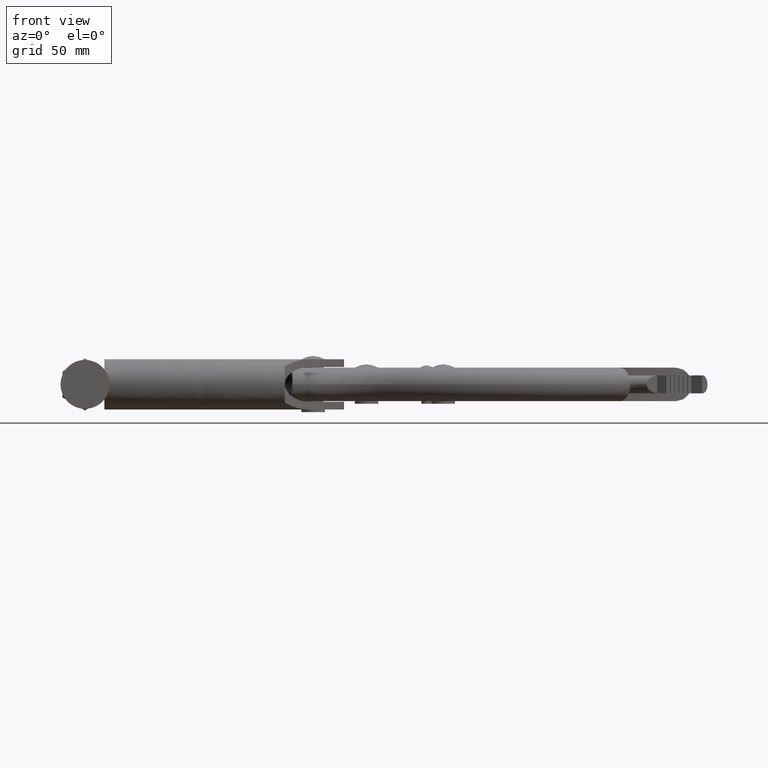
[diagram: clean part render]
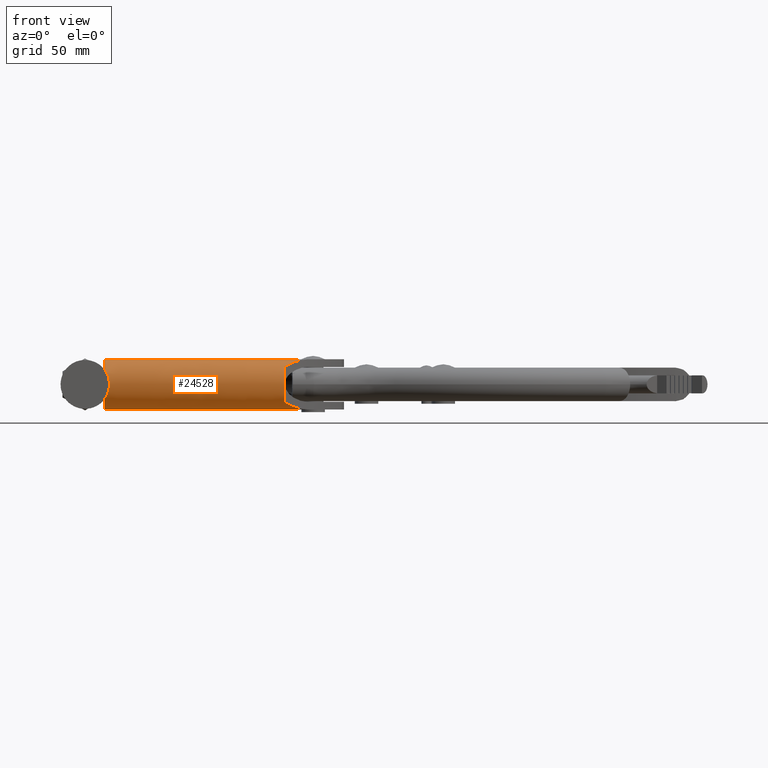
[diagram: same view with one face highlighted and labeled with its STEP entity id]
A machine part, front view. The second image highlights one B-rep face of the part: STEP entity #24528.
In plain terms, the highlighted face is a freeform B-spline surface patch.
Its self-contained STEP definition (entity closure, byte-faithful):
#10 = CARTESIAN_POINT ( 'NONE',  ( -10.99999999999999500, -63.60130230763510900, 4.122655292441647700 ) ) ;
#35 = CARTESIAN_POINT ( 'NONE',  ( -80.99999999999994300, -56.23557614971336700, 8.885146068946415500 ) ) ;
#68 = CARTESIAN_POINT ( 'NONE',  ( -79.14731322599847400, -58.95901770343950700, -9.750000000012692100 ) ) ;
#102 = CARTESIAN_POINT ( 'NONE',  ( -10.99999999999998200, -63.14598815522848000, -4.982927277785707400 ) ) ;
#160 = CARTESIAN_POINT ( 'NONE',  ( -16.96658838870659700, -61.54075029403308900, -9.749999999877239500 ) ) ;
#204 = CARTESIAN_POINT ( 'NONE',  ( -80.99999999999997200, -60.04865129759465200, -5.830951894843589200 ) ) ;
#247 = CARTESIAN_POINT ( 'NONE',  ( -80.59099257660383800, -52.22306262961085100, -9.750000000000001800 ) ) ;
#249 = CARTESIAN_POINT ( 'NONE',  ( -80.99999999999997200, -60.04865129759566100, 5.830951894843583900 ) ) ;
#292 = CARTESIAN_POINT ( 'NONE',  ( -79.96136676580773900, -61.18899207878620000, -4.193929438987821900 ) ) ;
#323 = CARTESIAN_POINT ( 'NONE',  ( -22.91762485197743600, -55.23556778063811400, -9.750000000000000000 ) ) ;
#367 = CARTESIAN_POINT ( 'NONE',  ( -79.25730162877560800, -61.96471388766787000, 2.212609560494053400 ) ) ;
#429 = CARTESIAN_POINT ( 'NONE',  ( -80.99999999999998600, -54.79383632825982200, -9.403832414778163300 ) ) ;
#512 = CARTESIAN_POINT ( 'NONE',  ( -80.99999999999998600, -52.16984112924933500, -9.750000000000001800 ) ) ;
#1051 = CARTESIAN_POINT ( 'NONE',  ( -5.058759421501897600, -56.87790304191037200, -9.428152585810194000 ) ) ;
#1127 = B_SPLINE_CURVE_WITH_KNOTS ( 'NONE', 3,
 ( #512, #8314, #19022, #429, #2469, #12748, #6650, #25621, #12833, #23596, #8749, #23314, #17007, #14980 ),
 .UNSPECIFIED., .F., .F.,
 ( 4, 2, 2, 2, 2, 2, 4 ),
 ( 0.0000000000000000000, 0.002267054839750052600, 0.003400582259625078900, 0.004534109679500105200, 0.005667637099375131100, 0.006801164519250157800, 0.009068219359000224300 ),
 .UNSPECIFIED. ) ;
#1155 = CARTESIAN_POINT ( 'NONE',  ( -3.585006133254516700, -55.54411360403386100, 9.685405435461357000 ) ) ;
#1358 = CARTESIAN_POINT ( 'NONE',  ( -83.66989394677301600, -51.82242503476005900, 9.749999999999998200 ) ) ;
#1443 = CARTESIAN_POINT ( 'NONE',  ( -25.76629742154991800, -55.29429598406699900, 9.750000000000000000 ) ) ;
#1505 = CARTESIAN_POINT ( 'NONE',  ( -80.99999999999998600, -55.17520462385438400, 9.290909267478383500 ) ) ;
#1545 = CARTESIAN_POINT ( 'NONE',  ( -89.81728177907388000, -57.49250638506728700, 9.750000000000001800 ) ) ;
#1632 = CARTESIAN_POINT ( 'NONE',  ( -40.14789293031491000, -61.79764668956094200, 9.750000000015209200 ) ) ;
#1718 = CARTESIAN_POINT ( 'NONE',  ( 3.562713870709056900, -60.18948788805651900, 9.749999999983659300 ) ) ;
#1822 = CARTESIAN_POINT ( 'NONE',  ( -58.05566293169954400, -69.15168877964887900, 4.875000000000008000 ) ) ;
#1885 = CARTESIAN_POINT ( 'NONE',  ( -80.99999999999992900, -54.80815897448801600, 9.400038902919368100 ) ) ;
#1917 = CARTESIAN_POINT ( 'NONE',  ( -2.923797278832176900, -68.87693152224392200, 4.875000000009412000 ) ) ;
#1989 = CARTESIAN_POINT ( 'NONE',  ( -2.159480926927452900, -54.15055672537749800, -9.750000000000000000 ) ) ;
#2007 = CARTESIAN_POINT ( 'NONE',  ( -69.85094179949022900, -68.16026436113588700, -4.874999999953104200 ) ) ;
#2094 = CARTESIAN_POINT ( 'NONE',  ( -7.609068090918660800, -69.19888657529159600, -4.875000000019585200 ) ) ;
#2122 = CARTESIAN_POINT ( 'NONE',  ( -10.99999999999997200, -64.18082851796243900, 2.598031956307568400 ) ) ;
#2184 = CARTESIAN_POINT ( 'NONE',  ( -74.83591370832451200, -59.46482059992134600, -9.750000000000001800 ) ) ;
#2216 = CARTESIAN_POINT ( 'NONE',  ( -10.99999999999998000, -62.41215867362756600, -6.075047580657427600 ) ) ;
#2265 = CARTESIAN_POINT ( 'NONE',  ( -28.56820610776287900, -56.23288284388180400, -9.750000000000000000 ) ) ;
#2269 = CARTESIAN_POINT ( 'NONE',  ( -12.63002846670291700, -61.34517316394185800, -9.749999999949480400 ) ) ;
#2353 = CARTESIAN_POINT ( 'NONE',  ( -78.34130242945134600, -52.50917298653184400, -9.750000000000001800 ) ) ;
#2412 = CARTESIAN_POINT ( 'NONE',  ( -79.47888697262891400, -61.72045102132584300, -2.989778074141461200 ) ) ;
#2449 = CARTESIAN_POINT ( 'NONE',  ( -17.22265508886921400, -55.04574985744148600, -9.750000000000000000 ) ) ;
#2469 = CARTESIAN_POINT ( 'NONE',  ( -81.00000000000001400, -55.15971391558952800, -9.295978508210961200 ) ) ;
#2504 = CARTESIAN_POINT ( 'NONE',  ( -79.47861653371313700, -61.72074900417160100, 2.989013246369465600 ) ) ;
#2647 = EDGE_CURVE ( 'NONE', #5566, #24545, #13348, .T. ) ;
#2987 = CARTESIAN_POINT ( 'NONE',  ( -8.029775159335180500, -59.34582587397908800, -8.527204270465944100 ) ) ;
#3267 = CARTESIAN_POINT ( 'NONE',  ( -5.771571591478299000, -57.50420538101995000, 9.271441694693441700 ) ) ;
#3470 = CARTESIAN_POINT ( 'NONE',  ( -80.17675011163163400, -52.27628567044376200, 9.749999999999998200 ) ) ;
#3556 = CARTESIAN_POINT ( 'NONE',  ( -18.64619962403432400, -55.09923428709608100, 9.750000000000000000 ) ) ;
#3644 = CARTESIAN_POINT ( 'NONE',  ( -84.48807429680702800, -58.27072565701229900, 9.750000000002341200 ) ) ;
#3732 = CARTESIAN_POINT ( 'NONE',  ( -25.65709580777852100, -61.79356275791633400, 9.750000000000000000 ) ) ;
#3834 = CARTESIAN_POINT ( 'NONE',  ( -90.84000721661641400, -65.55288216287091500, 4.874999999999992000 ) ) ;
#3918 = CARTESIAN_POINT ( 'NONE',  ( -40.31705974839320600, -69.92180437041993500, 4.875000000030413000 ) ) ;
#4010 = CARTESIAN_POINT ( 'NONE',  ( 4.005258630353677200, -68.30242688239525300, 4.875000000198396900 ) ) ;
#4066 = CARTESIAN_POINT ( 'NONE',  ( -80.99999999999998600, -55.88804154976977400, 9.033657176844457100 ) ) ;
#4098 = CARTESIAN_POINT ( 'NONE',  ( -58.05566293169954400, -69.15168877964887900, -4.874999999999973400 ) ) ;
#4134 = CARTESIAN_POINT ( 'NONE',  ( -10.99999999999996800, -61.98776301959944800, 6.574099288817439700 ) ) ;
#4192 = CARTESIAN_POINT ( 'NONE',  ( -2.923797278832176900, -68.87693152224392200, -4.874999999975482700 ) ) ;
#4218 = CARTESIAN_POINT ( 'NONE',  ( -10.99999999999998000, -64.42822207076382300, 1.309476093073838900 ) ) ;
#4274 = CARTESIAN_POINT ( 'NONE',  ( -69.07174476613133200, -60.07248183610830200, -9.749999999969583400 ) ) ;
#4306 = CARTESIAN_POINT ( 'NONE',  ( -10.99999999999999300, -61.51108990453455000, -7.031315148407488300 ) ) ;
#4367 = CARTESIAN_POINT ( 'NONE',  ( -8.051612850623280700, -61.08594758032744200, -9.750000000012160900 ) ) ;
#4460 = CARTESIAN_POINT ( 'NONE',  ( -74.11511751349317500, -53.00486288548685100, -9.750000000000001800 ) ) ;
#4512 = CARTESIAN_POINT ( 'NONE',  ( -79.25597341120062800, -61.96617832573020500, -2.207247788991125900 ) ) ;
#4546 = CARTESIAN_POINT ( 'NONE',  ( -12.97181536218671700, -54.85415382995543600, -9.750000000000000000 ) ) ;
#4592 = CARTESIAN_POINT ( 'NONE',  ( -79.75817960019848800, -61.41276889499666700, 3.727799708896696500 ) ) ;
#4719 = CARTESIAN_POINT ( 'NONE',  ( -80.99999999999998600, -52.16984112924933500, 9.749999999999998200 ) ) ;
#4890 = EDGE_CURVE ( 'NONE', #17103, #24025, #1127, .T. ) ;
#5348 = CARTESIAN_POINT ( 'NONE',  ( -7.259731775797028800, -58.73058874130585800, 8.803042071363536900 ) ) ;
#5560 = CARTESIAN_POINT ( 'NONE',  ( -76.94536370270310500, -52.67818558957519300, 9.749999999999998200 ) ) ;
#5566 = VERTEX_POINT ( 'NONE', #17156 ) ;
#5649 = CARTESIAN_POINT ( 'NONE',  ( -14.37627627157653300, -54.92270850080378600, 9.750000000000000000 ) ) ;
#5688 = CARTESIAN_POINT ( 'NONE',  ( -10.26123135012481100, -61.00294527603680500, -7.479763174725235300 ) ) ;
#5747 = CARTESIAN_POINT ( 'NONE',  ( -80.99836532113921800, -58.72415047158664000, 9.749999999999650100 ) ) ;
#5812 = EDGE_CURVE ( 'NONE', #23164, #15089, #10738, .T. ) ;
#5831 = ORIENTED_EDGE ( 'NONE', *, *, #5812, .F. ) ;
#5835 = CARTESIAN_POINT ( 'NONE',  ( -18.41461734224869300, -61.59515373841598800, 9.750000000002534900 ) ) ;
#5925 = CARTESIAN_POINT ( 'NONE',  ( -85.51079973434959000, -66.33110143484400100, 4.874999999990660800 ) ) ;
#6008 = CARTESIAN_POINT ( 'NONE',  ( -25.52059379056048600, -69.91764622536749100, 4.874999999915022600 ) ) ;
#6034 = CARTESIAN_POINT ( 'NONE',  ( -80.99999999999997200, -60.04865129759465200, -5.830951894843589200 ) ) ;
#6084 = ORIENTED_EDGE ( 'NONE', *, *, #13961, .F. ) ;
#6114 = CARTESIAN_POINT ( 'NONE',  ( -90.84000721661641400, -65.55288216287091500, -4.875000000000027500 ) ) ;
#6196 = CARTESIAN_POINT ( 'NONE',  ( -40.31705974839320600, -69.92180437041993500, -4.874999999974663800 ) ) ;
#6276 = CARTESIAN_POINT ( 'NONE',  ( 4.005258630353678100, -68.30242688239525300, -4.874999999311426400 ) ) ;
#6305 = CARTESIAN_POINT ( 'NONE',  ( -10.99999999999997700, -64.51098259453172500, 0.3289903456079698000 ) ) ;
#6362 = CARTESIAN_POINT ( 'NONE',  ( -57.52025990114437100, -61.04342580112623300, -9.749999999999984000 ) ) ;
#6419 = CARTESIAN_POINT ( 'NONE',  ( -81.00000000000001400, -59.58782831101665100, 6.443554548297376200 ) ) ;
#6446 = CARTESIAN_POINT ( 'NONE',  ( -80.99999999999998600, -52.16984112924933500, -9.750000000000001800 ) ) ;
#6452 = CARTESIAN_POINT ( 'NONE',  ( -3.366342038535847800, -60.76399252730795600, -9.749999999986805200 ) ) ;
#6464 = CARTESIAN_POINT ( 'NONE',  ( -10.99999999999999300, -61.51108990453455000, -7.031315148407488300 ) ) ;
#6531 = CARTESIAN_POINT ( 'NONE',  ( -68.44838713941580000, -53.60225581603554400, -9.750000000000001800 ) ) ;
#6533 = CARTESIAN_POINT ( 'NONE',  ( -81.00000000000000000, -59.06492514384591900, 6.990429527890460000 ) ) ;
#6587 = CARTESIAN_POINT ( 'NONE',  ( -79.09949003456810600, -62.13874756243309600, -1.398630612616876600 ) ) ;
#6624 = CARTESIAN_POINT ( 'NONE',  ( -8.405648658387114800, -54.59559638437346500, -9.750000000000000000 ) ) ;
#6650 = CARTESIAN_POINT ( 'NONE',  ( -80.99999999999994300, -56.22940723339442600, -8.887919534565321900 ) ) ;
#6681 = CARTESIAN_POINT ( 'NONE',  ( -80.08637632122943700, -61.05154444996149000, 4.418351042839035800 ) ) ;
#6812 = CARTESIAN_POINT ( 'NONE',  ( -28.56820610776288700, -56.23288284388180400, 9.750000000000000000 ) ) ;
#6890 = B_SPLINE_CURVE_WITH_KNOTS ( 'NONE', 3,
 ( #16894, #2265, #19007, #6446 ),
 .UNSPECIFIED., .F., .F.,
 ( 4, 4 ),
 ( 0.0000000000000000000, 1.000000000000000000 ),
 .UNSPECIFIED. ) ;
#7006 = CARTESIAN_POINT ( 'NONE',  ( -2.159480926927452900, -54.15055672537749800, -9.750000000000000000 ) ) ;
#7240 = ORIENTED_EDGE ( 'NONE', *, *, #22517, .F. ) ;
#7467 = CARTESIAN_POINT ( 'NONE',  ( -8.388293776322312200, -59.61613623391378500, 8.367050375593233700 ) ) ;
#7673 = CARTESIAN_POINT ( 'NONE',  ( -72.69906438211056400, -53.16021138699663600, 9.749999999999998200 ) ) ;
#7769 = CARTESIAN_POINT ( 'NONE',  ( -9.987774072457781900, -54.69138023624728400, 9.750000000000000000 ) ) ;
#7848 = CARTESIAN_POINT ( 'NONE',  ( -77.71486023887767700, -59.13252334860386100, 9.750000000000001800 ) ) ;
#7935 = CARTESIAN_POINT ( 'NONE',  ( -14.07123172130712700, -61.41559296378843400, 9.750000000002534900 ) ) ;
#8034 = CARTESIAN_POINT ( 'NONE',  ( -82.02538433302156300, -66.78398147301136600, 4.875000000001612900 ) ) ;
#8132 = CARTESIAN_POINT ( 'NONE',  ( -18.12513949001096200, -69.71505305273572600, 4.874999999892888300 ) ) ;
#8217 = CARTESIAN_POINT ( 'NONE',  ( -85.51079973434959000, -66.33110143484400100, -4.875000000036221700 ) ) ;
#8300 = CARTESIAN_POINT ( 'NONE',  ( -25.52059379056048600, -69.91764622536749100, -4.875000000253663800 ) ) ;
#8314 = CARTESIAN_POINT ( 'NONE',  ( -80.99999999999998600, -52.93636771448458900, -9.750000000000005300 ) ) ;
#8394 = CARTESIAN_POINT ( 'NONE',  ( -89.81728177907388000, -57.49250638506728700, -9.750000000000017800 ) ) ;
#8421 = CARTESIAN_POINT ( 'NONE',  ( -10.99999999999998000, -64.44677071219172100, -1.297581340900455700 ) ) ;
#8473 = CARTESIAN_POINT ( 'NONE',  ( -40.14789293031491000, -61.79764668956094200, -9.749999999989867700 ) ) ;
#8552 = CARTESIAN_POINT ( 'NONE',  ( 3.562713870709054700, -60.18948788805651900, -9.749999999591525000 ) ) ;
#8636 = CARTESIAN_POINT ( 'NONE',  ( -57.09193747674079600, -54.55681541829189000, -9.750000000000000000 ) ) ;
#8696 = CARTESIAN_POINT ( 'NONE',  ( -79.01260297119790700, -62.23458873068293700, -0.5640472202085367000 ) ) ;
#8731 = CARTESIAN_POINT ( 'NONE',  ( -3.720377846298880800, -54.27364133136396200, -9.750000000000000000 ) ) ;
#8749 = CARTESIAN_POINT ( 'NONE',  ( -80.99999999999997200, -58.17878950035004200, -7.726063741424723300 ) ) ;
#8782 = CARTESIAN_POINT ( 'NONE',  ( -80.71307754068604400, -60.36285601402465100, 5.461900926208897100 ) ) ;
#9361 = CARTESIAN_POINT ( 'NONE',  ( -80.99999999999998600, -52.16984112924933500, 9.749999999999998200 ) ) ;
#9548 = CARTESIAN_POINT ( 'NONE',  ( -10.26201953862262600, -61.00348741294448700, 7.479284727787911500 ) ) ;
#9767 = CARTESIAN_POINT ( 'NONE',  ( -65.61124484929534600, -53.86494962371342900, 9.749999999999998200 ) ) ;
#9853 = CARTESIAN_POINT ( 'NONE',  ( -5.281790912440882800, -54.38726369147204300, 9.750000000000000000 ) ) ;
#9947 = CARTESIAN_POINT ( 'NONE',  ( -73.39550494355869100, -59.62284014121347300, 9.750000000005067900 ) ) ;
#9955 = ORIENTED_EDGE ( 'NONE', *, *, #2647, .F. ) ;
#9964 = ORIENTED_EDGE ( 'NONE', *, *, #24574, .F. ) ;
#10046 = EDGE_LOOP ( 'NONE', ( #27218, #12527, #7240, #5831, #10809, #6084, #9964, #9955 ) ) ;
#10051 = CARTESIAN_POINT ( 'NONE',  ( -9.620617776017107700, -61.18101575253208300, 9.750000000001366000 ) ) ;
#10134 = CARTESIAN_POINT ( 'NONE',  ( -78.67673090910095400, -67.20044554738717600, 4.874999999999999100 ) ) ;
#10209 = CARTESIAN_POINT ( 'NONE',  ( -13.68992603346719900, -69.53169854263731500, 4.874999999934622100 ) ) ;
#10312 = CARTESIAN_POINT ( 'NONE',  ( -82.02538433302156300, -66.78398147301136600, -4.874999999994480000 ) ) ;
#10410 = CARTESIAN_POINT ( 'NONE',  ( -18.12513949001096200, -69.71505305273572600, -4.875000000325139000 ) ) ;
#10440 = CARTESIAN_POINT ( 'NONE',  ( -10.99999999999998200, -62.96626748910513500, 5.273118626238780100 ) ) ;
#10493 = CARTESIAN_POINT ( 'NONE',  ( -84.48807429680702800, -58.27072565701229900, -9.750000000021035600 ) ) ;
#10523 = CARTESIAN_POINT ( 'NONE',  ( -10.99999999999996300, -63.98800846737140100, -3.215004784595843800 ) ) ;
#10578 = CARTESIAN_POINT ( 'NONE',  ( -25.65709580777852100, -61.79356275791633400, -9.750000000149663400 ) ) ;
#10627 = CARTESIAN_POINT ( 'NONE',  ( -80.85754189045718500, -60.20465515319764900, -5.647716663128511200 ) ) ;
#10670 = CARTESIAN_POINT ( 'NONE',  ( -88.99910142903984000, -51.04420576282436900, -9.750000000000001800 ) ) ;
#10716 = CARTESIAN_POINT ( 'NONE',  ( -80.71954778823945300, -60.35597699075884700, -5.456408942768901800 ) ) ;
#10738 = B_SPLINE_CURVE_WITH_KNOTS ( 'NONE', 3,
 ( #6464, #5688, #26088, #2987, #24344, #14996, #22223, #1051, #26354, #10848, #14049, #7006 ),
 .UNSPECIFIED., .F., .F.,
 ( 4, 2, 2, 2, 2, 4 ),
 ( 8.845388854693243300E-018, 0.002964843509135175400, 0.005929687018270342200, 0.007412108772837925300, 0.008894530527405509300, 0.01185937403654067000 ),
 .UNSPECIFIED. ) ;
#10748 = CARTESIAN_POINT ( 'NONE',  ( -40.01255947585632800, -55.29832054487375400, -9.750000000000000000 ) ) ;
#10795 = CARTESIAN_POINT ( 'NONE',  ( -79.00016839191340500, -62.24830632912941300, 0.5658472433978974900 ) ) ;
#10809 = ORIENTED_EDGE ( 'NONE', *, *, #16301, .F. ) ;
#10829 = CARTESIAN_POINT ( 'NONE',  ( 3.208678062956780600, -53.69913669222373200, -9.750000000000000000 ) ) ;
#10848 = CARTESIAN_POINT ( 'NONE',  ( -3.587907011996652500, -55.54705365693866500, -9.685446657505984500 ) ) ;
#11450 = CARTESIAN_POINT ( 'NONE',  ( -81.00000000000000000, -58.19133037049683600, 7.716258717038318300 ) ) ;
#11546 = CARTESIAN_POINT ( 'NONE',  ( -2.867897577131278900, -54.85995509460249100, 9.750000000000174100 ) ) ;
#11748 = CARTESIAN_POINT ( 'NONE',  ( -88.99910142903984000, -51.04420576282436900, 9.749999999999998200 ) ) ;
#11841 = CARTESIAN_POINT ( 'NONE',  ( -51.40188969345767600, -54.88975437161701600, 9.750000000000000000 ) ) ;
#11934 = VERTEX_POINT ( 'NONE', #13362 ) ;
#11942 = CARTESIAN_POINT ( 'NONE',  ( 0.5253620283422957300, -53.93884329754214200, 9.750000000000000000 ) ) ;
#12032 = CARTESIAN_POINT ( 'NONE',  ( -66.18585915588195700, -60.33968606530854800, 9.749999999999998200 ) ) ;
#12106 = CARTESIAN_POINT ( 'NONE',  ( -4.927755104678407600, -60.87761488742602000, 9.749999999999998200 ) ) ;
#12205 = CARTESIAN_POINT ( 'NONE',  ( -74.26605564538658700, -67.70112608401619500, 4.874999999998732600 ) ) ;
#12303 = CARTESIAN_POINT ( 'NONE',  ( -9.161672405461507300, -69.29306014793985500, 4.874999999971403300 ) ) ;
#12384 = CARTESIAN_POINT ( 'NONE',  ( -78.67673090910095400, -67.20044554738717600, -4.875000000000000000 ) ) ;
#12411 = CARTESIAN_POINT ( 'NONE',  ( -10.99999999999732100, -61.51108990452868100, 7.031315148407361300 ) ) ;
#12466 = CARTESIAN_POINT ( 'NONE',  ( -13.68992603346719900, -69.53169854263731500, -4.875000000207538000 ) ) ;
#12502 = CARTESIAN_POINT ( 'NONE',  ( -10.99999999999995600, -63.45607107045360400, 4.420442604289529100 ) ) ;
#12527 = ORIENTED_EDGE ( 'NONE', *, *, #4890, .F. ) ;
#12559 = CARTESIAN_POINT ( 'NONE',  ( -80.99836532113921800, -58.72415047158664000, -9.749999999996442000 ) ) ;
#12592 = CARTESIAN_POINT ( 'NONE',  ( -10.99999999999998400, -63.46252429004932300, -4.407727892759297100 ) ) ;
#12650 = CARTESIAN_POINT ( 'NONE',  ( -18.41461734224869300, -61.59515373841598800, -9.750000000193940900 ) ) ;
#12730 = CARTESIAN_POINT ( 'NONE',  ( -83.66989394677301600, -51.82242503476005900, -9.750000000000001800 ) ) ;
#12732 = CARTESIAN_POINT ( 'NONE',  ( -81.00000000000004300, -57.24277076613633900, 8.360355126477886100 ) ) ;
#12748 = CARTESIAN_POINT ( 'NONE',  ( -81.00000000000000000, -55.88009840869368400, -9.037028174353849900 ) ) ;
#12776 = CARTESIAN_POINT ( 'NONE',  ( -80.32477510234601000, -60.78943037024129100, -4.845361006630767500 ) ) ;
#12814 = CARTESIAN_POINT ( 'NONE',  ( -25.76629742154991800, -55.29429598406699900, -9.750000000000000000 ) ) ;
#12833 = CARTESIAN_POINT ( 'NONE',  ( -80.99999999999998600, -57.23524585135204700, -8.364667974106531300 ) ) ;
#12868 = CARTESIAN_POINT ( 'NONE',  ( -79.19679267631842400, -62.03143827258809000, 1.943672993695907000 ) ) ;
#13348 = B_SPLINE_CURVE_WITH_KNOTS ( 'NONE', 3,
 ( #249, #6419, #6533, #11450, #20387, #12732, #21339, #35, #4066, #1505, #1885, #21303, #27257, #9361 ),
 .UNSPECIFIED., .F., .F.,
 ( 4, 2, 2, 2, 2, 2, 4 ),
 ( 2.587135082600906500E-006, 0.002269555026471622100, 0.003403038972166133800, 0.004536522917860644600, 0.005670006863555156200, 0.006803490809249667900, 0.009070458700638710200 ),
 .UNSPECIFIED. ) ;
#13362 = CARTESIAN_POINT ( 'NONE',  ( -2.159480926925010400, -54.15055672537505400, 9.750000000000000000 ) ) ;
#13961 = EDGE_CURVE ( 'NONE', #11934, #24641, #22205, .T. ) ;
#13964 = CARTESIAN_POINT ( 'NONE',  ( -34.31328121732843800, -55.37394761525509100, 9.750000000000000000 ) ) ;
#14035 = B_SPLINE_CURVE_WITH_KNOTS ( 'NONE', 3,
 ( #12411, #4134, #23062, #10440, #25210, #12502, #10, #14652, #2122, #16752, #4218, #18870, #6305, #20998, #8421, #23151, #10523, #25294, #12592, #102, #14726, #2216, #16829, #4306 ),
 .UNSPECIFIED., .F., .F.,
 ( 4, 2, 2, 2, 2, 2, 2, 2, 2, 2, 2, 4 ),
 ( 3.109360211505206200E-015, 0.001953415565190349000, 0.002930123347783962800, 0.003906831130377576300, 0.005860246695564822300, 0.006836954478158443500, 0.007813662260752066500, 0.009767077825939312500, 0.01172049339112655800, 0.01269720117372018200, 0.01367390895631380400, 0.01562732452150105600 ),
 .UNSPECIFIED. ) ;
#14042 = CARTESIAN_POINT ( 'NONE',  ( 5.890463716274472200, -53.43137631366371900, 9.750000000000000000 ) ) ;
#14049 = CARTESIAN_POINT ( 'NONE',  ( -2.867280302997464900, -54.85933696505361500, -9.750000000000175900 ) ) ;
#14145 = CARTESIAN_POINT ( 'NONE',  ( -51.73260173771061000, -61.38207175625785100, 9.749999999984790800 ) ) ;
#14246 = CARTESIAN_POINT ( 'NONE',  ( 0.8793978361057901400, -60.42919449351568100, 9.750000000004066100 ) ) ;
#14344 = CARTESIAN_POINT ( 'NONE',  ( -66.90412703908988600, -68.43310661731256100, 4.875000000000008000 ) ) ;
#14428 = CARTESIAN_POINT ( 'NONE',  ( -4.485210344975145700, -68.99055388234671700, 4.875000000007497100 ) ) ;
#14522 = CARTESIAN_POINT ( 'NONE',  ( -74.26605564538658700, -67.70112608401619500, -4.875000000023448800 ) ) ;
#14622 = CARTESIAN_POINT ( 'NONE',  ( -9.161672405461507300, -69.29306014793985500, -4.875000000091939800 ) ) ;
#14652 = CARTESIAN_POINT ( 'NONE',  ( -10.99999999999999100, -63.98665485010035800, 3.219530712152078900 ) ) ;
#14701 = CARTESIAN_POINT ( 'NONE',  ( -77.71486023887767700, -59.13252334860386100, -9.750000000000001800 ) ) ;
#14726 = CARTESIAN_POINT ( 'NONE',  ( -10.99999999999998400, -62.97169820371588100, -5.264822701441395300 ) ) ;
#14778 = CARTESIAN_POINT ( 'NONE',  ( -14.07123172130712700, -61.41559296378843400, -9.750000000123130000 ) ) ;
#14870 = CARTESIAN_POINT ( 'NONE',  ( -80.17675011163163400, -52.27628567044376200, -9.750000000000001800 ) ) ;
#14922 = CARTESIAN_POINT ( 'NONE',  ( -79.74790754646454600, -61.42405139163163600, -3.732008899470769000 ) ) ;
#14960 = CARTESIAN_POINT ( 'NONE',  ( -18.64619962403432400, -55.09923428709608100, -9.750000000000000000 ) ) ;
#14980 = CARTESIAN_POINT ( 'NONE',  ( -80.99999999999997200, -60.04865129759465200, -5.830951894843589200 ) ) ;
#14996 = CARTESIAN_POINT ( 'NONE',  ( -6.171206712969671500, -57.83583322395055900, -9.149672610230005900 ) ) ;
#15010 = CARTESIAN_POINT ( 'NONE',  ( -79.39811719183417400, -61.80947563225381500, 2.734747446299095900 ) ) ;
#15089 = VERTEX_POINT ( 'NONE', #1989 ) ;
#15794 = CARTESIAN_POINT ( 'NONE',  ( -5.036843491944146000, -56.86625292697377900, 9.446187406542335900 ) ) ;
#16004 = CARTESIAN_POINT ( 'NONE',  ( -80.59099257660383800, -52.22306262961085100, 9.749999999999998200 ) ) ;
#16099 = CARTESIAN_POINT ( 'NONE',  ( -22.91762485197743600, -55.23556778063811400, 9.750000000000000000 ) ) ;
#16188 = CARTESIAN_POINT ( 'NONE',  ( -87.15444246486475800, -57.89552172940537400, 9.749999999995330000 ) ) ;
#16284 = CARTESIAN_POINT ( 'NONE',  ( -34.35084626381218000, -61.87457552522622700, 9.750000000000000000 ) ) ;
#16301 = EDGE_CURVE ( 'NONE', #24641, #23164, #14035, .T. ) ;
#16341 = B_SPLINE_CURVE_WITH_KNOTS ( 'NONE', 3,
 ( #204, #10627, #10716, #25472, #12776, #292, #14922, #2412, #17031, #4512, #19152, #6587, #21299, #8696, #23435, #10795, #25568, #12868, #367, #15010, #2504, #17127, #4592, #19256, #6681, #21392, #8782, #23539 ),
 .UNSPECIFIED., .F., .F.,
 ( 4, 2, 2, 2, 2, 2, 2, 2, 2, 2, 2, 2, 2, 4 ),
 ( 0.002367606851515499600, 0.003205932153434353600, 0.004044257455353207300, 0.005720908059190887700, 0.006559233361109733500, 0.007397558663028580200, 0.008235883964947426900, 0.009074209266866273600, 0.01075085987070396500, 0.01158918517262281500, 0.01242751047454166400, 0.01326583577646051400, 0.01410416107837936400, 0.01578081168221704900 ),
 .UNSPECIFIED. ) ;
#16358 = CARTESIAN_POINT ( 'NONE',  ( 6.244499524037633100, -59.92172750961777400, 9.750000000000005300 ) ) ;
#16449 = CARTESIAN_POINT ( 'NONE',  ( -52.14599179302170700, -69.49746848705891000, 4.874999999969575400 ) ) ;
#16544 = CARTESIAN_POINT ( 'NONE',  ( 1.321942595810845900, -68.54213348848118400, 4.874999999989101200 ) ) ;
#16645 = CARTESIAN_POINT ( 'NONE',  ( -66.90412703908988600, -68.43310661731256100, -4.874999999999973400 ) ) ;
#16722 = CARTESIAN_POINT ( 'NONE',  ( -4.485210344975145700, -68.99055388234671700, -4.874999999980213200 ) ) ;
#16752 = CARTESIAN_POINT ( 'NONE',  ( -10.99999999999997700, -64.37810270249409000, 1.636692992781410900 ) ) ;
#16803 = CARTESIAN_POINT ( 'NONE',  ( -73.39550494355869100, -59.62284014121347300, -9.750000000015212700 ) ) ;
#16829 = CARTESIAN_POINT ( 'NONE',  ( -10.99999999999997900, -61.98776510283789100, -6.574097290618555100 ) ) ;
#16894 = CARTESIAN_POINT ( 'NONE',  ( -2.159480926927452900, -54.15055672537749800, -9.750000000000000000 ) ) ;
#16899 = CARTESIAN_POINT ( 'NONE',  ( -9.620617776017107700, -61.18101575253208300, -9.750000000054488000 ) ) ;
#16987 = CARTESIAN_POINT ( 'NONE',  ( -76.94536370270310500, -52.67818558957519300, -9.750000000000001800 ) ) ;
#17007 = CARTESIAN_POINT ( 'NONE',  ( -80.99999999999994300, -59.58779919619512100, -6.443593252564393300 ) ) ;
#17031 = CARTESIAN_POINT ( 'NONE',  ( -79.39739295319013500, -61.81027387087085100, -2.732492511939121500 ) ) ;
#17066 = CARTESIAN_POINT ( 'NONE',  ( -14.37627627157653300, -54.92270850080378600, -9.750000000000000000 ) ) ;
#17103 = VERTEX_POINT ( 'NONE', #18470 ) ;
#17127 = CARTESIAN_POINT ( 'NONE',  ( -79.65834824552695200, -61.52272539911270900, 3.484932436273383300 ) ) ;
#17156 = CARTESIAN_POINT ( 'NONE',  ( -80.99999999999997200, -60.04865129759566100, 5.830951894843583900 ) ) ;
#17167 = CARTESIAN_POINT ( 'NONE',  ( -80.99999999999998600, -52.16984112924933500, 9.749999999999998200 ) ) ;
#17256 = CARTESIAN_POINT ( 'NONE',  ( -54.84837913211945400, -55.57264431184001600, 9.749999999999998200 ) ) ;
#17900 = CARTESIAN_POINT ( 'NONE',  ( -6.886139320965411600, -58.42812876233198700, 8.930118689059167300 ) ) ;
#18110 = CARTESIAN_POINT ( 'NONE',  ( -78.34130242945134600, -52.50917298653184400, 9.749999999999998200 ) ) ;
#18213 = CARTESIAN_POINT ( 'NONE',  ( -17.22265508886921400, -55.04574985744148600, 9.750000000000000000 ) ) ;
#18303 = CARTESIAN_POINT ( 'NONE',  ( -81.40917292663785100, -58.67136325185232700, 9.749999999999650100 ) ) ;
#18377 = CARTESIAN_POINT ( 'NONE',  ( -22.75948202143357700, -61.73382834213697400, 9.749999999994926700 ) ) ;
#18470 = CARTESIAN_POINT ( 'NONE',  ( -80.99999999999998600, -52.16984112924933500, -9.750000000000001800 ) ) ;
#18471 = CARTESIAN_POINT ( 'NONE',  ( -88.17716790240375200, -65.95589750716457900, 4.875000000017506900 ) ) ;
#18526 = FACE_OUTER_BOUND ( 'NONE', #10046, .T. ) ;
#18571 = CARTESIAN_POINT ( 'NONE',  ( -34.39780257192445800, -70.00036041241141000, 4.875000000169777100 ) ) ;
#18655 = CARTESIAN_POINT ( 'NONE',  ( 6.687044283741592200, -68.03466650456054800, 4.874999999999899600 ) ) ;
#18747 = CARTESIAN_POINT ( 'NONE',  ( -52.14599179302170700, -69.49746848705891000, -4.875000000025361000 ) ) ;
#18837 = CARTESIAN_POINT ( 'NONE',  ( 1.321942595810845900, -68.54213348848118400, -4.875000000047496200 ) ) ;
#18870 = CARTESIAN_POINT ( 'NONE',  ( -10.99999999999998000, -64.49456427289763400, 0.6554006198028647900 ) ) ;
#18928 = CARTESIAN_POINT ( 'NONE',  ( -66.18585915588195700, -60.33968606530854800, -9.749999999999984000 ) ) ;
#19007 = CARTESIAN_POINT ( 'NONE',  ( -54.84837913211944700, -55.57264431184001600, -9.750000000000001800 ) ) ;
#19010 = CARTESIAN_POINT ( 'NONE',  ( -4.927755104678407600, -60.87761488742602000, -9.749999999987721800 ) ) ;
#19022 = CARTESIAN_POINT ( 'NONE',  ( -80.99999999999998600, -53.68798716970919600, -9.662310046014916100 ) ) ;
#19100 = CARTESIAN_POINT ( 'NONE',  ( -72.69906438211056400, -53.16021138699663600, -9.750000000000001800 ) ) ;
#19152 = CARTESIAN_POINT ( 'NONE',  ( -79.19623329553816400, -62.03205518073959000, -1.940536088219168900 ) ) ;
#19195 = CARTESIAN_POINT ( 'NONE',  ( -9.987774072457781900, -54.69138023624728400, -9.750000000000000000 ) ) ;
#19256 = CARTESIAN_POINT ( 'NONE',  ( -79.97228072987721200, -61.17708289079873700, 4.194510534259357800 ) ) ;
#20021 = CARTESIAN_POINT ( 'NONE',  ( -8.010793492559521700, -59.32460274833550800, 8.521552554881212800 ) ) ;
#20249 = CARTESIAN_POINT ( 'NONE',  ( -74.11511751349317500, -53.00486288548685100, 9.749999999999998200 ) ) ;
#20301 = B_SPLINE_CURVE_WITH_KNOTS ( 'NONE', 3,
 ( #4719, #17256, #6812, #21526 ),
 .UNSPECIFIED., .F., .F.,
 ( 4, 4 ),
 ( 0.0000000000000000000, 1.000000000000000000 ),
 .UNSPECIFIED. ) ;
#20332 = CARTESIAN_POINT ( 'NONE',  ( -12.97181536218671700, -54.85415382995543600, 9.750000000000000000 ) ) ;
#20387 = CARTESIAN_POINT ( 'NONE',  ( -81.00000000000001400, -57.88406349627099000, 7.942963149832560400 ) ) ;
#20424 = CARTESIAN_POINT ( 'NONE',  ( -79.14731322599847400, -58.95901770343950700, 9.750000000001275400 ) ) ;
#20533 = CARTESIAN_POINT ( 'NONE',  ( -16.96658838870659700, -61.54075029403308900, 9.749999999997465100 ) ) ;
#20622 = CARTESIAN_POINT ( 'NONE',  ( -82.43189836418042700, -66.73173902965170600, 4.875000000001433500 ) ) ;
#20708 = CARTESIAN_POINT ( 'NONE',  ( -22.56180348326515900, -69.85665404367090000, 4.875000000214188700 ) ) ;
#20792 = CARTESIAN_POINT ( 'NONE',  ( -88.17716790240368100, -65.95589750716457900, -4.874999999927633900 ) ) ;
#20889 = CARTESIAN_POINT ( 'NONE',  ( -34.39780257192445800, -70.00036041241141000, -4.874999999493204500 ) ) ;
#20969 = CARTESIAN_POINT ( 'NONE',  ( 6.687044283741592200, -68.03466650456054800, -4.875000000000332200 ) ) ;
#20998 = CARTESIAN_POINT ( 'NONE',  ( -10.99999999999997300, -64.51130295566878200, -0.6484076691115878700 ) ) ;
#21055 = CARTESIAN_POINT ( 'NONE',  ( -51.73260173771061000, -61.38207175625785100, -9.750000000010146600 ) ) ;
#21151 = CARTESIAN_POINT ( 'NONE',  ( 0.8793978361057904800, -60.42919449351568100, -9.750000000027423400 ) ) ;
#21250 = CARTESIAN_POINT ( 'NONE',  ( -65.61124484929534600, -53.86494962371342900, -9.750000000000001800 ) ) ;
#21299 = CARTESIAN_POINT ( 'NONE',  ( -79.06248244889317800, -62.17956815330354900, -1.123438525820381400 ) ) ;
#21303 = CARTESIAN_POINT ( 'NONE',  ( -80.99999999999994300, -53.69170566480423200, 9.662313357863029100 ) ) ;
#21337 = CARTESIAN_POINT ( 'NONE',  ( -5.281790912440882800, -54.38726369147204300, -9.750000000000000000 ) ) ;
#21339 = CARTESIAN_POINT ( 'NONE',  ( -80.99999999999995700, -56.91293974980548100, 8.548492787317306000 ) ) ;
#21392 = CARTESIAN_POINT ( 'NONE',  ( -80.44745533512228500, -60.65454866691341400, 5.064590980831413300 ) ) ;
#21526 = CARTESIAN_POINT ( 'NONE',  ( -2.159480926925010400, -54.15055672537505400, 9.750000000000000000 ) ) ;
#21612 = CARTESIAN_POINT ( 'NONE',  ( -10.99999999999732100, -61.51108990452868100, 7.031315148407361300 ) ) ;
#22190 = CARTESIAN_POINT ( 'NONE',  ( -9.514897179696584200, -60.46627171372627900, 7.865256459325554100 ) ) ;
#22205 = B_SPLINE_CURVE_WITH_KNOTS ( 'NONE', 3,
 ( #26324, #11546, #1155, #15794, #3267, #17900, #5348, #20021, #7467, #22190, #9548, #24320 ),
 .UNSPECIFIED., .F., .F.,
 ( 4, 2, 2, 2, 2, 4 ),
 ( 0.0000000000000000000, 0.002965054220659467200, 0.005930108441318934400, 0.007412635551648659800, 0.008895162661978386900, 0.01186021688263784300 ),
 .UNSPECIFIED. ) ;
#22223 = CARTESIAN_POINT ( 'NONE',  ( -5.800115662286629900, -57.52136582517602600, -9.251297298500373900 ) ) ;
#22408 = CARTESIAN_POINT ( 'NONE',  ( -68.44838713941580000, -53.60225581603554400, 9.749999999999998200 ) ) ;
#22496 = CARTESIAN_POINT ( 'NONE',  ( -8.405648658387114800, -54.59559638437346500, 9.750000000000000000 ) ) ;
#22517 = EDGE_CURVE ( 'NONE', #15089, #17103, #6890, .T. ) ;
#22590 = CARTESIAN_POINT ( 'NONE',  ( -74.83591370832451200, -59.46482059992134600, 9.750000000000001800 ) ) ;
#22676 = CARTESIAN_POINT ( 'NONE',  ( -12.63002846670291700, -61.34517316394185800, 9.749999999998744100 ) ) ;
#22768 = CARTESIAN_POINT ( 'NONE',  ( -80.15482672169000000, -67.02132359958807200, 4.874999999994297900 ) ) ;
#22864 = CARTESIAN_POINT ( 'NONE',  ( -16.64650501350648100, -69.65950083965495300, 4.875000000065170100 ) ) ;
#22952 = CARTESIAN_POINT ( 'NONE',  ( -82.43189836418042700, -66.73173902965170600, -4.874999999994480000 ) ) ;
#23031 = CARTESIAN_POINT ( 'NONE',  ( -22.56180348326515900, -69.85665404367090000, -4.874999999349836500 ) ) ;
#23037 =( BOUNDED_SURFACE ( )  B_SPLINE_SURFACE ( 5, 3, ( 
 ( #11748, #26552, #1358, #16004, #3470, #18110, #5560, #20249, #7673, #22408, #9767, #24527, #11841, #26645, #13964, #1443, #16099, #3556, #18213, #5649, #20332, #7769, #22496, #9853, #24619, #11942, #26740, #14042 ),
 ( #1545, #16188, #3644, #18303, #5747, #20424, #7848, #22590, #9947, #24707, #12032, #26830, #14145, #1632, #16284, #3732, #18377, #5835, #20533, #7935, #22676, #10051, #24797, #12106, #26917, #14246, #1718, #16358 ),
 ( #3834, #18471, #5925, #20622, #8034, #22768, #10134, #24894, #12205, #27005, #14344, #1822, #16449, #3918, #18571, #6008, #20708, #8132, #22864, #10209, #24980, #12303, #27100, #14428, #1917, #16544, #4010, #18655 ),
 ( #6114, #20792, #8217, #22952, #10312, #25076, #12384, #27198, #14522, #2007, #16645, #4098, #18747, #6196, #20889, #8300, #23031, #10410, #25176, #12466, #27286, #14622, #2094, #16722, #4192, #18837, #6276, #20969 ),
 ( #8394, #23122, #10493, #25270, #12559, #68, #14701, #2184, #16803, #4274, #18928, #6362, #21055, #8473, #23215, #10578, #25340, #12650, #160, #14778, #2269, #16899, #4367, #19010, #6452, #21151, #8552, #23296 ),
 ( #10670, #25419, #12730, #247, #14870, #2353, #16987, #4460, #19100, #6531, #21250, #8636, #23381, #10748, #25515, #12814, #323, #14960, #2449, #17066, #4546, #19195, #6624, #21337, #8731, #23477, #10829, #25602 ) ),
 .UNSPECIFIED., .F., .F., .F. ) 
 B_SPLINE_SURFACE_WITH_KNOTS ( ( 6, 6 ),
 ( 4, 2, 2, 2, 2, 2, 2, 2, 2, 2, 2, 2, 2, 4 ),
 ( 0.0000000000000000000, 1.000000000000000000 ),
 ( -0.1327941471069352400, -0.01764064041691409600, 0.0000000000000000000, 0.06250000000000000000, 0.1250000000000000000, 0.2500000000000000000, 0.5000000000000000000, 0.7500000000000000000, 0.8750000000000000000, 0.9375000000000000000, 1.000000000000000000, 1.066947213241648700, 1.133894426483297300, 1.249047933173318400 ),
 .UNSPECIFIED. ) 
 GEOMETRIC_REPRESENTATION_ITEM ( )  RATIONAL_B_SPLINE_SURFACE ( (
 ( 1.000000000000000000, 1.000000000000000000, 1.000000000000000000, 1.000000000000000000, 1.000000000000000000, 1.000000000000000000, 1.000000000000000000, 1.000000000000000000, 1.000000000000000000, 1.000000000000000000, 1.000000000000000000, 1.000000000000000000, 1.000000000000000000, 1.000000000000000000, 1.000000000000000000, 1.000000000000000000, 1.000000000000000000, 1.000000000000000000, 1.000000000000000000, 1.000000000000000000, 1.000000000000000000, 1.000000000000000000, 1.000000000000000000, 1.000000000000000000, 1.000000000000000000, 1.000000000000000000, 1.000000000000000000, 1.000000000000000000),
 ( 0.5999999999999995300, 0.5999999999999995300, 0.5999999999999993100, 0.5999999999999993100, 0.5999999999999993100, 0.5999999999999993100, 0.6000000000000000900, 0.6000000000000000900, 0.6000000000000000900, 0.6000000000000000900, 0.6000000000000005300, 0.6000000000000005300, 0.5999999999999998700, 0.5999999999999998700, 0.5999999999999968700, 0.5999999999999968700, 0.5999999999999993100, 0.5999999999999993100, 0.5999999999999943200, 0.5999999999999943200, 0.5999999999999942000, 0.5999999999999942000, 0.6000000000000018700, 0.6000000000000018700, 0.5999999999998932900, 0.5999999999998932900, 0.5999999999999937600, 0.5999999999999937600),
 ( 0.3999999999999993000, 0.3999999999999993000, 0.3999999999999988600, 0.3999999999999988600, 0.3999999999999988600, 0.3999999999999988600, 0.4000000000000000200, 0.4000000000000000200, 0.4000000000000000200, 0.4000000000000000200, 0.4000000000000008000, 0.4000000000000008000, 0.3999999999999996900, 0.3999999999999996900, 0.3999999999999951400, 0.3999999999999951400, 0.3999999999999990200, 0.3999999999999990200, 0.3999999999999915800, 0.3999999999999915800, 0.3999999999999913100, 0.3999999999999913100, 0.4000000000000028500, 0.4000000000000028500, 0.3999999999998399800, 0.3999999999998399800, 0.3999999999999905900, 0.3999999999999905900),
 ( 0.3999999999999993000, 0.3999999999999993000, 0.3999999999999988600, 0.3999999999999988600, 0.3999999999999988600, 0.3999999999999988600, 0.4000000000000000200, 0.4000000000000000200, 0.4000000000000000200, 0.4000000000000000200, 0.4000000000000008000, 0.4000000000000008000, 0.3999999999999996900, 0.3999999999999996900, 0.3999999999999951400, 0.3999999999999951400, 0.3999999999999990200, 0.3999999999999990200, 0.3999999999999915800, 0.3999999999999915800, 0.3999999999999913100, 0.3999999999999913100, 0.4000000000000028500, 0.4000000000000028500, 0.3999999999998399800, 0.3999999999998399800, 0.3999999999999905900, 0.3999999999999905900),
 ( 0.5999999999999995300, 0.5999999999999995300, 0.5999999999999993100, 0.5999999999999993100, 0.5999999999999993100, 0.5999999999999993100, 0.6000000000000000900, 0.6000000000000000900, 0.6000000000000000900, 0.6000000000000000900, 0.6000000000000005300, 0.6000000000000005300, 0.5999999999999998700, 0.5999999999999998700, 0.5999999999999968700, 0.5999999999999968700, 0.5999999999999993100, 0.5999999999999993100, 0.5999999999999943200, 0.5999999999999943200, 0.5999999999999942000, 0.5999999999999942000, 0.6000000000000018700, 0.6000000000000018700, 0.5999999999998932900, 0.5999999999998932900, 0.5999999999999937600, 0.5999999999999937600),
 ( 1.000000000000000000, 1.000000000000000000, 1.000000000000000000, 1.000000000000000000, 1.000000000000000000, 1.000000000000000000, 1.000000000000000000, 1.000000000000000000, 1.000000000000000000, 1.000000000000000000, 1.000000000000000000, 1.000000000000000000, 1.000000000000000000, 1.000000000000000000, 1.000000000000000000, 1.000000000000000000, 1.000000000000000000, 1.000000000000000000, 1.000000000000000000, 1.000000000000000000, 1.000000000000000000, 1.000000000000000000, 1.000000000000000000, 1.000000000000000000, 1.000000000000000000, 1.000000000000000000, 1.000000000000000000, 1.000000000000000000) ) ) 
 REPRESENTATION_ITEM ( '' )  SURFACE ( )  );
#23062 = CARTESIAN_POINT ( 'NONE',  ( -10.99999999999998600, -62.41033885992275300, 6.076803469496916000 ) ) ;
#23122 = CARTESIAN_POINT ( 'NONE',  ( -87.15444246486478600, -57.89552172940537400, -9.749999999960318000 ) ) ;
#23151 = CARTESIAN_POINT ( 'NONE',  ( -10.99999999999998200, -64.18319609347628300, -2.590890711173715400 ) ) ;
#23164 = VERTEX_POINT ( 'NONE', #27064 ) ;
#23215 = CARTESIAN_POINT ( 'NONE',  ( -34.35084626381218000, -61.87457552522622700, -9.749999999700989400 ) ) ;
#23296 = CARTESIAN_POINT ( 'NONE',  ( 6.244499524037633100, -59.92172750961777400, -9.750000000000197200 ) ) ;
#23314 = CARTESIAN_POINT ( 'NONE',  ( -80.99999999999997200, -59.06245243255412400, -6.993684869274842300 ) ) ;
#23381 = CARTESIAN_POINT ( 'NONE',  ( -51.40188969345767600, -54.88975437161701600, -9.750000000000000000 ) ) ;
#23435 = CARTESIAN_POINT ( 'NONE',  ( -78.99991643821707000, -62.24858427042396900, -0.2786722812524157200 ) ) ;
#23477 = CARTESIAN_POINT ( 'NONE',  ( 0.5253620283422959500, -53.93884329754214200, -9.750000000000000000 ) ) ;
#23539 = CARTESIAN_POINT ( 'NONE',  ( -80.99999999999997200, -60.04865129759566100, 5.830951894843583900 ) ) ;
#23596 = CARTESIAN_POINT ( 'NONE',  ( -81.00000000000004300, -57.87058663107401200, -7.952300501650090500 ) ) ;
#24025 = VERTEX_POINT ( 'NONE', #6034 ) ;
#24320 = CARTESIAN_POINT ( 'NONE',  ( -10.99999999999732100, -61.51108990452868100, 7.031315148407361300 ) ) ;
#24344 = CARTESIAN_POINT ( 'NONE',  ( -7.285478954434933200, -58.75842228929548100, -8.806524714091363400 ) ) ;
#24527 = CARTESIAN_POINT ( 'NONE',  ( -57.09193747674079600, -54.55681541829189000, 9.750000000000000000 ) ) ;
#24528 = ADVANCED_FACE ( 'NONE', ( #18526 ), #23037, .T. ) ;
#24545 = VERTEX_POINT ( 'NONE', #17167 ) ;
#24574 = EDGE_CURVE ( 'NONE', #24545, #11934, #20301, .T. ) ;
#24619 = CARTESIAN_POINT ( 'NONE',  ( -3.720377846298880800, -54.27364133136396200, 9.750000000000000000 ) ) ;
#24641 = VERTEX_POINT ( 'NONE', #21612 ) ;
#24707 = CARTESIAN_POINT ( 'NONE',  ( -69.07174476613133200, -60.07248183610830200, 9.749999999989860600 ) ) ;
#24797 = CARTESIAN_POINT ( 'NONE',  ( -8.051612850623280700, -61.08594758032744200, 9.749999999999998200 ) ) ;
#24894 = CARTESIAN_POINT ( 'NONE',  ( -75.73690895185858100, -67.53976774296697300, 4.874999999999999100 ) ) ;
#24980 = CARTESIAN_POINT ( 'NONE',  ( -12.20279484735259400, -69.45894733137691900, 4.875000000026529900 ) ) ;
#25076 = CARTESIAN_POINT ( 'NONE',  ( -80.15482672169000000, -67.02132359958807200, -4.875000000019670500 ) ) ;
#25176 = CARTESIAN_POINT ( 'NONE',  ( -16.64650501350648100, -69.65950083965495300, -4.874999999793077500 ) ) ;
#25210 = CARTESIAN_POINT ( 'NONE',  ( -10.99999999999996600, -63.13848704395180500, 4.995525478293108000 ) ) ;
#25270 = CARTESIAN_POINT ( 'NONE',  ( -81.40917292663785100, -58.67136325185232700, -9.749999999996799000 ) ) ;
#25294 = CARTESIAN_POINT ( 'NONE',  ( -10.99999999999996800, -63.60526970759990200, -4.114021707725664900 ) ) ;
#25340 = CARTESIAN_POINT ( 'NONE',  ( -22.75948202143357700, -61.73382834213697400, -9.749999999612182200 ) ) ;
#25419 = CARTESIAN_POINT ( 'NONE',  ( -86.33626211483246500, -51.44722110718089400, -9.750000000000001800 ) ) ;
#25472 = CARTESIAN_POINT ( 'NONE',  ( -80.45343579277587800, -60.64806576870949300, -5.055753121863941300 ) ) ;
#25515 = CARTESIAN_POINT ( 'NONE',  ( -34.31328121732843800, -55.37394761525509100, -9.750000000000000000 ) ) ;
#25568 = CARTESIAN_POINT ( 'NONE',  ( -79.04998843501886100, -62.19333992966761600, 1.121341284844281400 ) ) ;
#25602 = CARTESIAN_POINT ( 'NONE',  ( 5.890463716274472200, -53.43137631366371900, -9.750000000000000000 ) ) ;
#25621 = CARTESIAN_POINT ( 'NONE',  ( -80.99999999999992900, -56.90698192563151300, -8.551741185939894400 ) ) ;
#25827 = EDGE_CURVE ( 'NONE', #24025, #5566, #16341, .T. ) ;
#26088 = CARTESIAN_POINT ( 'NONE',  ( -9.517576799136037400, -60.46806275376530900, -7.863588519093927000 ) ) ;
#26324 = CARTESIAN_POINT ( 'NONE',  ( -2.159480926925010400, -54.15055672537505400, 9.750000000000000000 ) ) ;
#26354 = CARTESIAN_POINT ( 'NONE',  ( -4.688023132948140800, -56.54844163539804900, -9.503397088819776100 ) ) ;
#26552 = CARTESIAN_POINT ( 'NONE',  ( -86.33626211483246500, -51.44722110718089400, 9.749999999999998200 ) ) ;
#26645 = CARTESIAN_POINT ( 'NONE',  ( -40.01255947585632800, -55.29832054487375400, 9.750000000000000000 ) ) ;
#26740 = CARTESIAN_POINT ( 'NONE',  ( 3.208678062956780600, -53.69913669222373200, 9.750000000000000000 ) ) ;
#26830 = CARTESIAN_POINT ( 'NONE',  ( -57.52025990114437100, -61.04342580112623300, 9.749999999999998200 ) ) ;
#26917 = CARTESIAN_POINT ( 'NONE',  ( -3.366342038535847800, -60.76399252730795600, 9.750000000000373000 ) ) ;
#27005 = CARTESIAN_POINT ( 'NONE',  ( -69.85094179949022900, -68.16026436113588700, 4.875000000002534000 ) ) ;
#27064 = CARTESIAN_POINT ( 'NONE',  ( -10.99999999999999300, -61.51108990453455000, -7.031315148407488300 ) ) ;
#27100 = CARTESIAN_POINT ( 'NONE',  ( -7.609068090918660800, -69.19888657529159600, 4.874999999992563300 ) ) ;
#27198 = CARTESIAN_POINT ( 'NONE',  ( -75.73690895185858100, -67.53976774296697300, -4.875000000000000000 ) ) ;
#27218 = ORIENTED_EDGE ( 'NONE', *, *, #25827, .F. ) ;
#27257 = CARTESIAN_POINT ( 'NONE',  ( -80.99999999999997200, -52.93633890823733900, 9.750000000000000000 ) ) ;
#27286 = CARTESIAN_POINT ( 'NONE',  ( -12.20279484735259400, -69.45894733137691900, -4.874999999914742900 ) ) ;